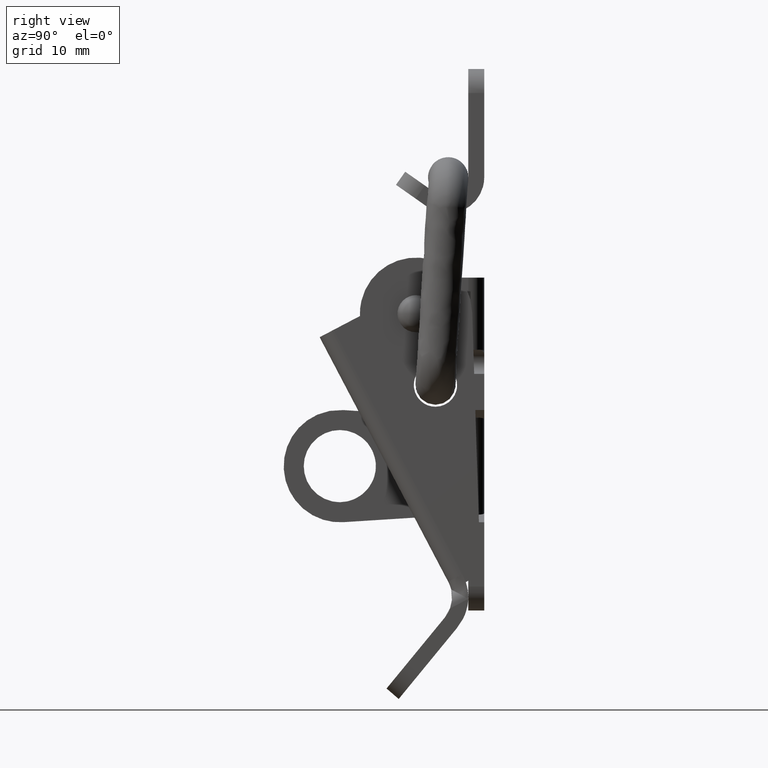
[diagram: clean part render]
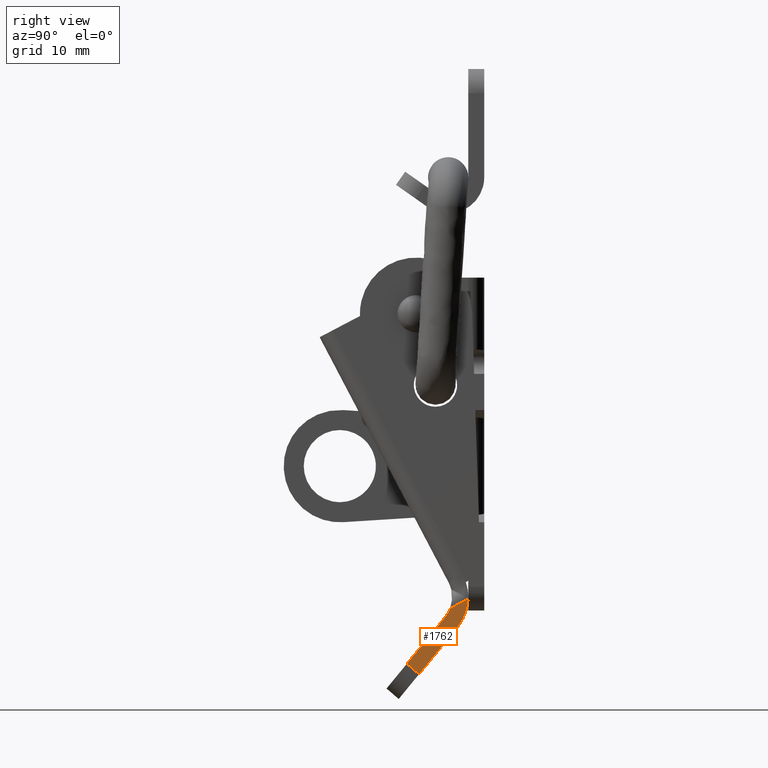
[diagram: same view with one face highlighted and labeled with its STEP entity id]
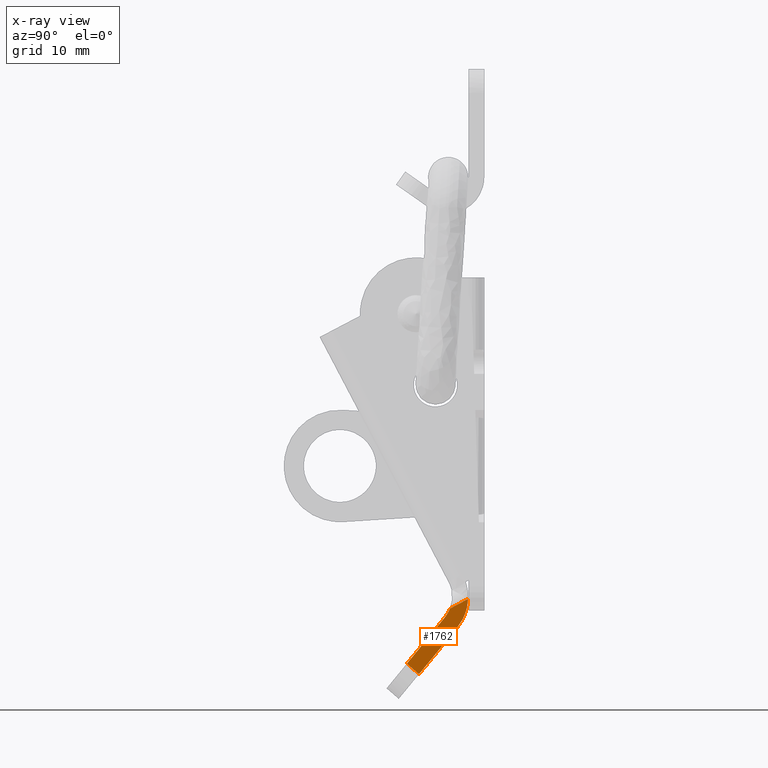
[diagram: x-ray of the same camera — body ghosted, the highlighted face saturated]
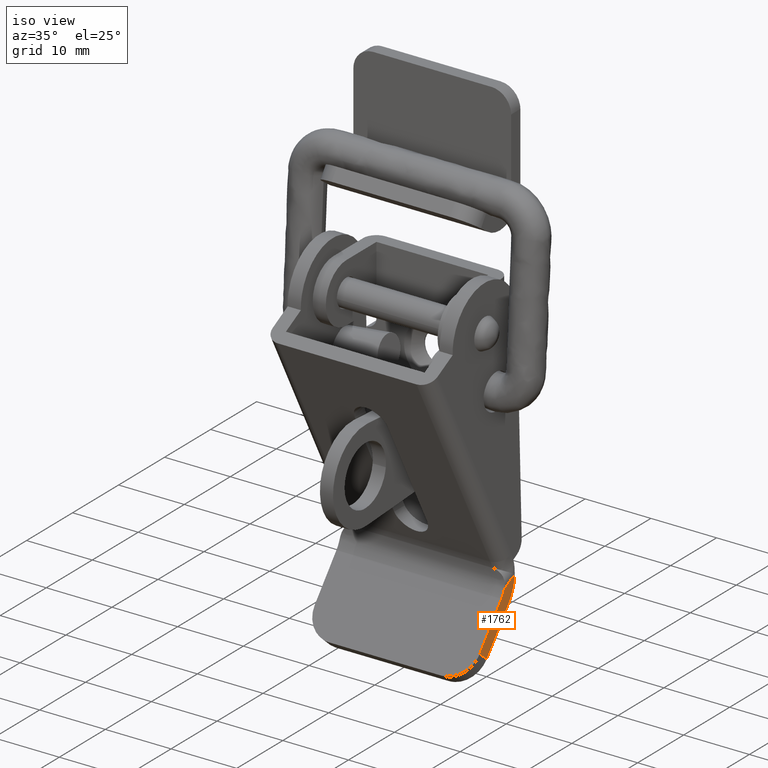
[diagram: same view with one face highlighted and labeled with its STEP entity id]
A machine part, right view. The second image highlights one B-rep face of the part: STEP entity #1762.
The next image is the same camera in x-ray: the body ghosted, the highlighted face saturated — about 0% of this face is hidden behind the body in this view.
A second angle (iso view) of the same face is appended — the face is thin or edge-on in the first view.
In plain terms, the highlighted face is a freeform B-spline surface patch.
Its self-contained STEP definition (entity closure, byte-faithful):
#1458=CARTESIAN_POINT('',(0.237331520302826,-12.550000000000001,-53.752476514301698));
#1459=VERTEX_POINT('',#1458);
#1493=CARTESIAN_POINT('',(2.495301881822390,-12.550000000000001,-52.564207809109497));
#1494=VERTEX_POINT('',#1493);
#1495=CARTESIAN_POINT('',(2.495301881822390,-12.550000000000001,-52.564207809109497));
#1496=CARTESIAN_POINT('',(0.237331520302826,-12.550000000000001,-53.752476514301698));
#1497=QUASI_UNIFORM_CURVE('',1,(#1495,#1496),.UNSPECIFIED.,.F.,.U.);
#1498=EDGE_CURVE('',#1494,#1459,#1497,.T.);
#1553=CARTESIAN_POINT('',(-3.623524277476050,-12.550000000000001,-61.932650288601302));
#1554=VERTEX_POINT('',#1553);
#1570=CARTESIAN_POINT('',(-5.138603179061600,-12.550000000000001,-60.627879347764299));
#1571=VERTEX_POINT('',#1570);
#1572=CARTESIAN_POINT('',(-5.138603179061600,-12.550000000000001,-60.627879347764299));
#1573=CARTESIAN_POINT('',(-3.623524277476050,-12.550000000000001,-61.932650288601302));
#1574=QUASI_UNIFORM_CURVE('',1,(#1572,#1573),.UNSPECIFIED.,.F.,.U.);
#1575=EDGE_CURVE('',#1571,#1554,#1574,.T.);
#1713=CARTESIAN_POINT('',(-5.519916793718405,-12.550000000000001,-62.400605224516269));
#1714=CARTESIAN_POINT('',(2.876615632984055,-12.550000000000001,-62.400605224516269));
#1715=CARTESIAN_POINT('',(-5.519916793718405,-12.550000000000001,-52.096255218485823));
#1716=CARTESIAN_POINT('',(2.876615632984055,-12.550000000000001,-52.096255218485823));
#1717=B_SPLINE_SURFACE_WITH_KNOTS('',1,1,((#1713,#1715),(#1714,#1716)),.UNSPECIFIED.,.F.,.F.,.U.,(2,2),(2,2),(0.0,8.396532426702461),(0.0,10.304350006030450),.UNSPECIFIED.);
#1718=CARTESIAN_POINT('',(1.110398633663634,-12.550000000000001,-56.166635886279913));
#1719=VERTEX_POINT('',#1718);
#1720=CARTESIAN_POINT('',(1.110398633663654,-12.550000000000001,-56.166635886279920));
#1721=CARTESIAN_POINT('',(2.414666895042772,-12.550000000000002,-54.600626223777496));
#1722=CARTESIAN_POINT('',(2.495301881822388,-12.550000000000001,-52.564207809109497));
#1730=(BOUNDED_CURVE()B_SPLINE_CURVE(2,(#1720,#1721,#1722),.UNSPECIFIED.,.F.,.U.)CURVE()GEOMETRIC_REPRESENTATION_ITEM()QUASI_UNIFORM_CURVE()RATIONAL_B_SPLINE_CURVE((1.0,0.946868211167645,1.0))REPRESENTATION_ITEM(''));
#1731=EDGE_CURVE('',#1719,#1494,#1730,.T.);
#1732=ORIENTED_EDGE('',*,*,#1731,.T.);
#1733=ORIENTED_EDGE('',*,*,#1498,.T.);
#1734=CARTESIAN_POINT('',(-0.408369053481060,-12.550000000000001,-54.865103065155303));
#1735=VERTEX_POINT('',#1734);
#1736=CARTESIAN_POINT('',(-0.408369053481056,-12.550000000000001,-54.865103065155303));
#1737=CARTESIAN_POINT('',(0.005100158483306,-12.550000000000001,-54.361379485588301));
#1738=CARTESIAN_POINT('',(0.237331520302832,-12.550000000000001,-53.752476514301698));
#1746=(BOUNDED_CURVE()B_SPLINE_CURVE(2,(#1736,#1737,#1738),.UNSPECIFIED.,.F.,.U.)CURVE()GEOMETRIC_REPRESENTATION_ITEM()QUASI_UNIFORM_CURVE()RATIONAL_B_SPLINE_CURVE((1.0,0.986991424823560,1.0))REPRESENTATION_ITEM(''));
#1747=EDGE_CURVE('',#1735,#1459,#1746,.T.);
#1748=ORIENTED_EDGE('',*,*,#1747,.F.);
#1749=CARTESIAN_POINT('',(-5.138603179061600,-12.550000000000001,-60.627879347764299));
#1750=CARTESIAN_POINT('',(-0.408369053481060,-12.550000000000001,-54.865103065155303));
#1751=QUASI_UNIFORM_CURVE('',1,(#1749,#1750),.UNSPECIFIED.,.F.,.U.);
#1752=EDGE_CURVE('',#1571,#1735,#1751,.T.);
#1753=ORIENTED_EDGE('',*,*,#1752,.F.);
#1754=ORIENTED_EDGE('',*,*,#1575,.T.);
#1755=CARTESIAN_POINT('',(1.110398633663634,-12.550000000000001,-56.166635886279913));
#1756=CARTESIAN_POINT('',(-3.623524277476050,-12.550000000000001,-61.932650288601302));
#1757=QUASI_UNIFORM_CURVE('',1,(#1755,#1756),.UNSPECIFIED.,.F.,.U.);
#1758=EDGE_CURVE('',#1719,#1554,#1757,.T.);
#1759=ORIENTED_EDGE('',*,*,#1758,.F.);
#1760=EDGE_LOOP('',(#1732,#1733,#1748,#1753,#1754,#1759));
#1761=FACE_OUTER_BOUND('',#1760,.T.);
#1762=ADVANCED_FACE('',(#1761),#1717,.T.);